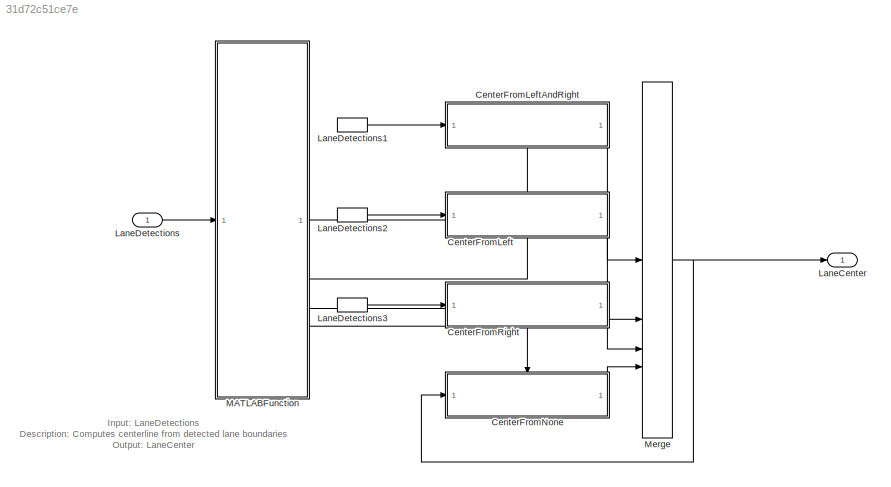
MODEL slx_31d72c51ce7e
KIND model
CONFIG AbsTol = auto
CONFIG EnableMultiTasking = on
CONFIG FixedStep = auto
CONFIG MaxStep = auto
CONFIG MinStep = auto
CONFIG RelTol = 1e-3
CONFIG SampleTimeConstraint = Unconstrained
CONFIG SolverName = FixedStepDiscrete
CONFIG StartTime = 0.0
CONFIG StopTime = 10.0
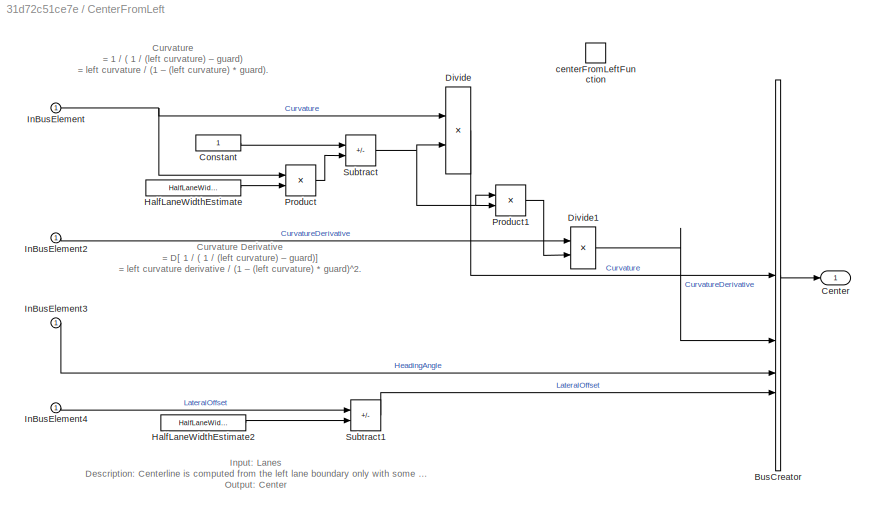
BLOCK [SubSystem] CenterFromLeft
  TreatAsAtomicUnit = on
BLOCK [BusCreator] CenterFromLeft/BusCreator
  DisplayOption = bar
  InheritFromInputs = on
  Inputs = 4
BLOCK [Outport] CenterFromLeft/Center
  VectorParamsAs1DForOutWhenUnconnected = off
BLOCK [Constant] CenterFromLeft/Constant
  OutDataTypeStr = single
BLOCK [Product] CenterFromLeft/Divide
  Inputs = */
BLOCK [Product] CenterFromLeft/Divide1
  Inputs = */
BLOCK [Constant] CenterFromLeft/HalfLaneWidthEstimate
  OutDataTypeStr = single
  Value = HalfLaneWidth
BLOCK [Constant] CenterFromLeft/HalfLaneWidthEstimate2
  OutDataTypeStr = single
  Value = HalfLaneWidth
BLOCK [Inport] CenterFromLeft/InBusElement
BLOCK [Inport] CenterFromLeft/InBusElement2
BLOCK [Inport] CenterFromLeft/InBusElement3
BLOCK [Inport] CenterFromLeft/InBusElement4
BLOCK [Product] CenterFromLeft/Product
BLOCK [Product] CenterFromLeft/Product1
BLOCK [Sum] CenterFromLeft/Subtract
  IconShape = rectangular
  Inputs = +-
BLOCK [Sum] CenterFromLeft/Subtract1
  IconShape = rectangular
  Inputs = +-
BLOCK [TriggerPort] CenterFromLeft/centerFromLeftFunction
  StatesWhenEnabling = held
  TriggerType = function-call
  VariantControl = Variant
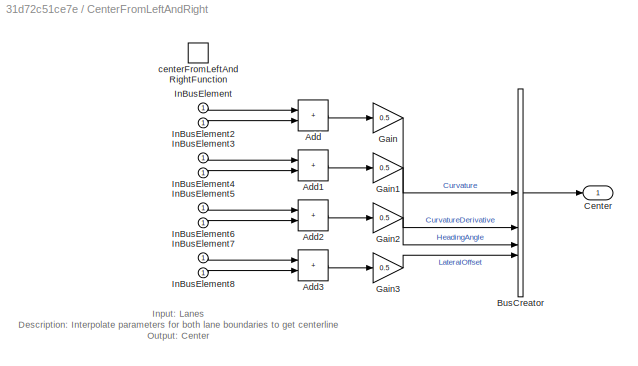
BLOCK [SubSystem] CenterFromLeftAndRight
  TreatAsAtomicUnit = on
BLOCK [Sum] CenterFromLeftAndRight/Add
  IconShape = rectangular
BLOCK [Sum] CenterFromLeftAndRight/Add1
  IconShape = rectangular
BLOCK [Sum] CenterFromLeftAndRight/Add2
  IconShape = rectangular
BLOCK [Sum] CenterFromLeftAndRight/Add3
  IconShape = rectangular
BLOCK [BusCreator] CenterFromLeftAndRight/BusCreator
  DisplayOption = bar
  InheritFromInputs = on
  Inputs = 4
BLOCK [Outport] CenterFromLeftAndRight/Center
  VectorParamsAs1DForOutWhenUnconnected = off
BLOCK [Gain] CenterFromLeftAndRight/Gain
  Gain = 0.5
BLOCK [Gain] CenterFromLeftAndRight/Gain1
  Gain = 0.5
BLOCK [Gain] CenterFromLeftAndRight/Gain2
  Gain = 0.5
BLOCK [Gain] CenterFromLeftAndRight/Gain3
  Gain = 0.5
BLOCK [Inport] CenterFromLeftAndRight/InBusElement
BLOCK [Inport] CenterFromLeftAndRight/InBusElement2
BLOCK [Inport] CenterFromLeftAndRight/InBusElement3
BLOCK [Inport] CenterFromLeftAndRight/InBusElement4
BLOCK [Inport] CenterFromLeftAndRight/InBusElement5
BLOCK [Inport] CenterFromLeftAndRight/InBusElement6
BLOCK [Inport] CenterFromLeftAndRight/InBusElement7
BLOCK [Inport] CenterFromLeftAndRight/InBusElement8
BLOCK [TriggerPort] CenterFromLeftAndRight/centerFromLeftAndRightFunction
  StatesWhenEnabling = held
  TriggerType = function-call
  VariantControl = Variant
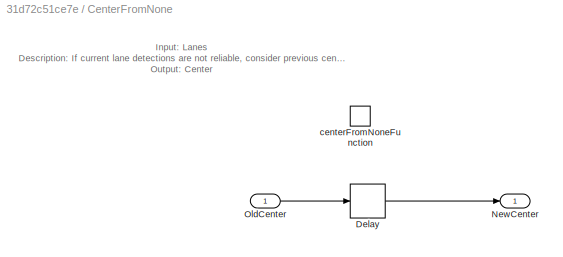
BLOCK [SubSystem] CenterFromNone
  TreatAsAtomicUnit = on
BLOCK [Delay] CenterFromNone/Delay
  DelayLength = 1
  InputPortMap = u0
BLOCK [Outport] CenterFromNone/NewCenter
  VectorParamsAs1DForOutWhenUnconnected = off
BLOCK [Inport] CenterFromNone/OldCenter
  LatchInputForFeedbackSignals = on
BLOCK [TriggerPort] CenterFromNone/centerFromNoneFunction
  StatesWhenEnabling = held
  TriggerType = function-call
  VariantControl = Variant
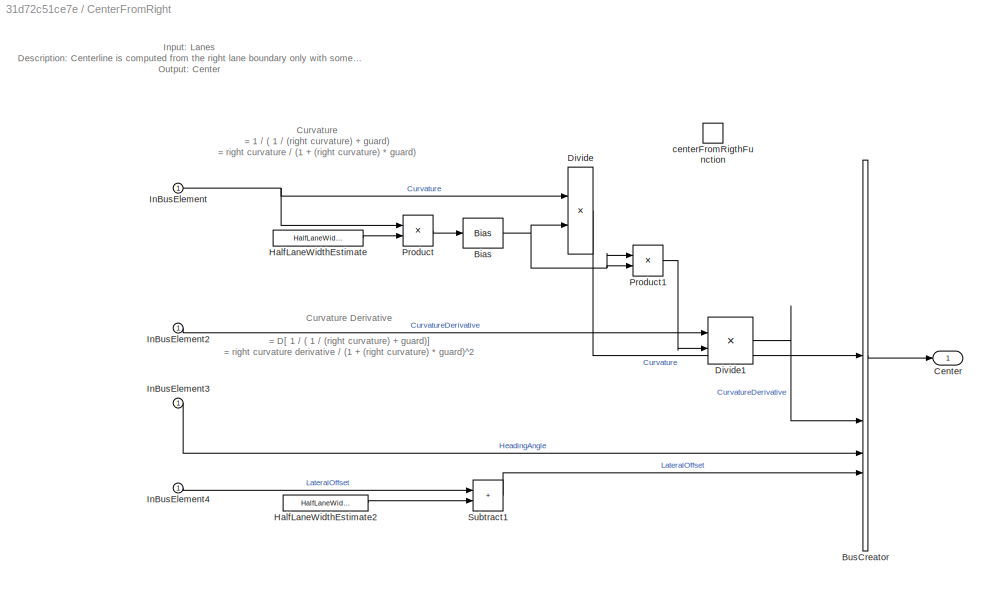
BLOCK [SubSystem] CenterFromRight
  TreatAsAtomicUnit = on
BLOCK [Bias] CenterFromRight/Bias
  Bias = 1.0
  SaturateOnIntegerOverflow = off
BLOCK [BusCreator] CenterFromRight/BusCreator
  DisplayOption = bar
  InheritFromInputs = on
  Inputs = 4
  OutDataTypeStr = Bus: BusLaneCenter
BLOCK [Outport] CenterFromRight/Center
  VectorParamsAs1DForOutWhenUnconnected = off
BLOCK [Product] CenterFromRight/Divide
  Inputs = */
BLOCK [Product] CenterFromRight/Divide1
  Inputs = */
BLOCK [Constant] CenterFromRight/HalfLaneWidthEstimate
  OutDataTypeStr = single
  Value = HalfLaneWidth
BLOCK [Constant] CenterFromRight/HalfLaneWidthEstimate2
  OutDataTypeStr = single
  Value = HalfLaneWidth
BLOCK [Inport] CenterFromRight/InBusElement
BLOCK [Inport] CenterFromRight/InBusElement2
BLOCK [Inport] CenterFromRight/InBusElement3
BLOCK [Inport] CenterFromRight/InBusElement4
BLOCK [Product] CenterFromRight/Product
BLOCK [Product] CenterFromRight/Product1
BLOCK [Sum] CenterFromRight/Subtract1
  IconShape = rectangular
BLOCK [TriggerPort] CenterFromRight/centerFromRigthFunction
  StatesWhenEnabling = held
  TriggerType = function-call
  VariantControl = Variant
BLOCK [Outport] LaneCenter
  OutDataTypeStr = Bus: BusLaneCenter
  PortDimensions = 1
  SampleTime = Ts
BLOCK [Inport] LaneDetections
  OutDataTypeStr = Bus: LaneSensor
  PortDimensions = 1
  SampleTime = Ts
BLOCK [InportShadow] LaneDetections1
  OutDataTypeStr = Bus: LaneSensor
  PortDimensions = 1
  SampleTime = Ts
BLOCK [InportShadow] LaneDetections2
  OutDataTypeStr = Bus: LaneSensor
  PortDimensions = 1
  SampleTime = Ts
BLOCK [InportShadow] LaneDetections3
  OutDataTypeStr = Bus: LaneSensor
  PortDimensions = 1
  SampleTime = Ts
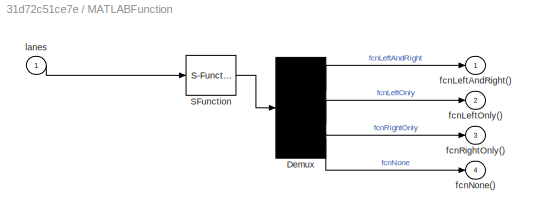
BLOCK [SubSystem] MATLABFunction
  ErrorFcn = Stateflow.Translate.translate
  PermitHierarchicalResolution = ExplicitOnly
  SFBlockType = MATLAB Function
  TreatAsAtomicUnit = on
BLOCK [Demux] MATLABFunction/ Demux 
BLOCK [S-Function] MATLABFunction/ SFunction 
  EnableBusSupport = off
  FunctionName = sf_sfun
  PortCounts = [1 1]
  SFcnIsStateOwnerBlock = off
  SFunctionDeploymentMode = off
  Tag = Stateflow S-Function 9
BLOCK [Outport] MATLABFunction/fcnLeftAndRight()
  VectorParamsAs1DForOutWhenUnconnected = off
BLOCK [Outport] MATLABFunction/fcnLeftOnly()
  Port = 2
  VectorParamsAs1DForOutWhenUnconnected = off
BLOCK [Outport] MATLABFunction/fcnNone()
  Port = 4
  VectorParamsAs1DForOutWhenUnconnected = off
BLOCK [Outport] MATLABFunction/fcnRightOnly()
  Port = 3
  VectorParamsAs1DForOutWhenUnconnected = off
BLOCK [Inport] MATLABFunction/lanes
BLOCK [Merge] Merge
  Inputs = 4
ANNOTATION (root): Input: LaneDetections Description: Computes centerline from detected lane boundaries Output: LaneCenter
ANNOTATION CenterFromLeft: Input: Lanes Description: Centerline is computed from the left lane boundary only with some guard distance Output: Center
ANNOTATION CenterFromLeft: Curvature = 1 / ( 1 / (left curvature) – guard) = left curvature / (1 – (left curvature) * guard).
ANNOTATION CenterFromLeft: Curvature Derivative = D[ 1 / ( 1 / (left curvature) – guard)] = left curvature derivative / (1 – (left curvature) * guard)^2.
ANNOTATION CenterFromLeftAndRight: Input: Lanes Description: Interpolate parameters for both lane boundaries to get centerline Output: Center
ANNOTATION CenterFromNone: Input: Lanes Description: If current lane detections are not reliable, consider previous centerline as current Output: Center
ANNOTATION CenterFromRight: Input: Lanes Description: Centerline is computed from the right lane boundary only with some guard distance Output: Center
ANNOTATION CenterFromRight: Curvature = 1 / ( 1 / (right curvature) + guard) = right curvature / (1 + (right curvature) * guard)
ANNOTATION CenterFromRight: Curvature Derivative = D[ 1 / ( 1 / (right curvature) + guard)] = right curvature derivative / (1 + (right curvature) * guard)^2
LINE CenterFromLeft/BusCreator:1 -> CenterFromLeft/Center:1
LINE CenterFromLeft/Constant:1 -> CenterFromLeft/Subtract:1
LINE CenterFromLeft/Divide1:1 -> CenterFromLeft/BusCreator:2
LINE CenterFromLeft/Divide:1 -> CenterFromLeft/BusCreator:1
LINE CenterFromLeft/HalfLaneWidthEstimate2:1 -> CenterFromLeft/Subtract1:2
LINE CenterFromLeft/HalfLaneWidthEstimate:1 -> CenterFromLeft/Product:2
LINE CenterFromLeft/InBusElement2:1 -> CenterFromLeft/Divide1:1
LINE CenterFromLeft/InBusElement3:1 -> CenterFromLeft/BusCreator:3
LINE CenterFromLeft/InBusElement4:1 -> CenterFromLeft/Subtract1:1
NET CenterFromLeft/InBusElement:1 -> CenterFromLeft/Divide:1, CenterFromLeft/Product:1
LINE CenterFromLeft/Product1:1 -> CenterFromLeft/Divide1:2
LINE CenterFromLeft/Product:1 -> CenterFromLeft/Subtract:2
LINE CenterFromLeft/Subtract1:1 -> CenterFromLeft/BusCreator:4
NET CenterFromLeft/Subtract:1 -> CenterFromLeft/Divide:2, CenterFromLeft/Product1:1, CenterFromLeft/Product1:2
LINE CenterFromLeft:1 -> Merge:2
LINE CenterFromLeftAndRight/Add1:1 -> CenterFromLeftAndRight/Gain1:1
LINE CenterFromLeftAndRight/Add2:1 -> CenterFromLeftAndRight/Gain2:1
LINE CenterFromLeftAndRight/Add3:1 -> CenterFromLeftAndRight/Gain3:1
LINE CenterFromLeftAndRight/Add:1 -> CenterFromLeftAndRight/Gain:1
LINE CenterFromLeftAndRight/BusCreator:1 -> CenterFromLeftAndRight/Center:1
LINE CenterFromLeftAndRight/Gain1:1 -> CenterFromLeftAndRight/BusCreator:2
LINE CenterFromLeftAndRight/Gain2:1 -> CenterFromLeftAndRight/BusCreator:3
LINE CenterFromLeftAndRight/Gain3:1 -> CenterFromLeftAndRight/BusCreator:4
LINE CenterFromLeftAndRight/Gain:1 -> CenterFromLeftAndRight/BusCreator:1
LINE CenterFromLeftAndRight/InBusElement2:1 -> CenterFromLeftAndRight/Add:2
LINE CenterFromLeftAndRight/InBusElement3:1 -> CenterFromLeftAndRight/Add1:1
LINE CenterFromLeftAndRight/InBusElement4:1 -> CenterFromLeftAndRight/Add1:2
LINE CenterFromLeftAndRight/InBusElement5:1 -> CenterFromLeftAndRight/Add2:1
LINE CenterFromLeftAndRight/InBusElement6:1 -> CenterFromLeftAndRight/Add2:2
LINE CenterFromLeftAndRight/InBusElement7:1 -> CenterFromLeftAndRight/Add3:1
LINE CenterFromLeftAndRight/InBusElement8:1 -> CenterFromLeftAndRight/Add3:2
LINE CenterFromLeftAndRight/InBusElement:1 -> CenterFromLeftAndRight/Add:1
LINE CenterFromLeftAndRight:1 -> Merge:1
LINE CenterFromNone/Delay:1 -> CenterFromNone/NewCenter:1
LINE CenterFromNone/OldCenter:1 -> CenterFromNone/Delay:1
LINE CenterFromNone:1 -> Merge:4
NET CenterFromRight/Bias:1 -> CenterFromRight/Divide:2, CenterFromRight/Product1:1, CenterFromRight/Product1:2
LINE CenterFromRight/BusCreator:1 -> CenterFromRight/Center:1
LINE CenterFromRight/Divide1:1 -> CenterFromRight/BusCreator:2
LINE CenterFromRight/Divide:1 -> CenterFromRight/BusCreator:1
LINE CenterFromRight/HalfLaneWidthEstimate2:1 -> CenterFromRight/Subtract1:2
LINE CenterFromRight/HalfLaneWidthEstimate:1 -> CenterFromRight/Product:2
LINE CenterFromRight/InBusElement2:1 -> CenterFromRight/Divide1:1
LINE CenterFromRight/InBusElement3:1 -> CenterFromRight/BusCreator:3
LINE CenterFromRight/InBusElement4:1 -> CenterFromRight/Subtract1:1
NET CenterFromRight/InBusElement:1 -> CenterFromRight/Divide:1, CenterFromRight/Product:1
LINE CenterFromRight/Product1:1 -> CenterFromRight/Divide1:2
LINE CenterFromRight/Product:1 -> CenterFromRight/Bias:1
LINE CenterFromRight/Subtract1:1 -> CenterFromRight/BusCreator:4
LINE CenterFromRight:1 -> Merge:3
LINE LaneDetections1:1 -> CenterFromLeftAndRight:1
LINE LaneDetections2:1 -> CenterFromLeft:1
LINE LaneDetections3:1 -> CenterFromRight:1
LINE LaneDetections:1 -> MATLABFunction:1
LINE MATLABFunction:1 -> CenterFromLeftAndRight:trigger
LINE MATLABFunction:2 -> CenterFromLeft:trigger
LINE MATLABFunction:3 -> CenterFromRight:trigger
LINE MATLABFunction:4 -> CenterFromNone:trigger
NET Merge:1 -> CenterFromNone:1, LaneCenter:1
note: NET lines group one-source signal fan-out (src -> all destinations, sorted); 1:1 wires keep LINE
CHART MATLABFunction states=1 transitions=1
  STATE_LABEL 'eML_blk_kernel()'
  STATE_LABEL 'SCRIPT:\nfunction fcn(lanes)\n% FUNCTION NAME:\n%   fcn\n%\n% DESCRIPTION:\n%   checks the strength for each lane boundary, and\n%\ttriggers an appropriate function accordingly.\n%\n% INPUT:\n%   lanes - (LaneSensor) output of the lane sensor\n%\n% OUTPUT:\n%   None\n%\n% ASSUMPTIONS AND LIMITATIONS:\n%   None\n%\n\n%   <copyright redacted>\n\nleftStrength  = lanes.Left.Strength;\nrightStrength = lan...<+297ch>'
CHART  states=0 transitions=0
